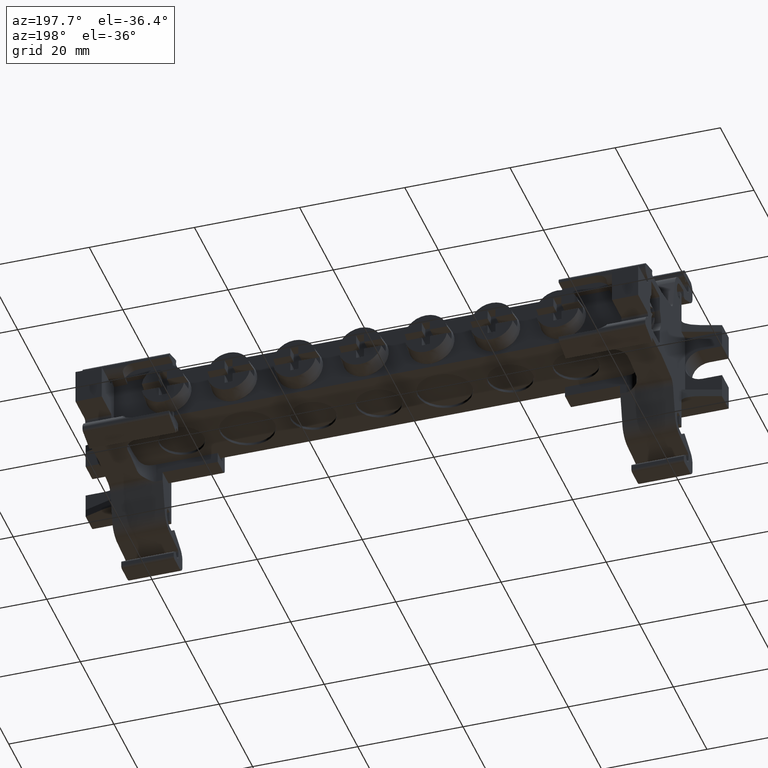
[diagram: clean part render]
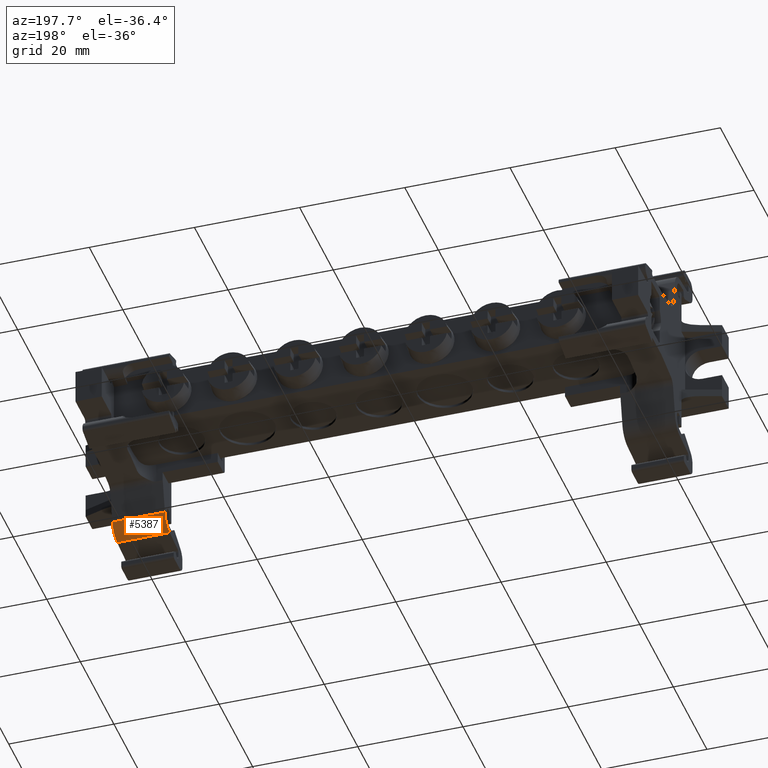
[diagram: same view with one face highlighted and labeled with its STEP entity id]
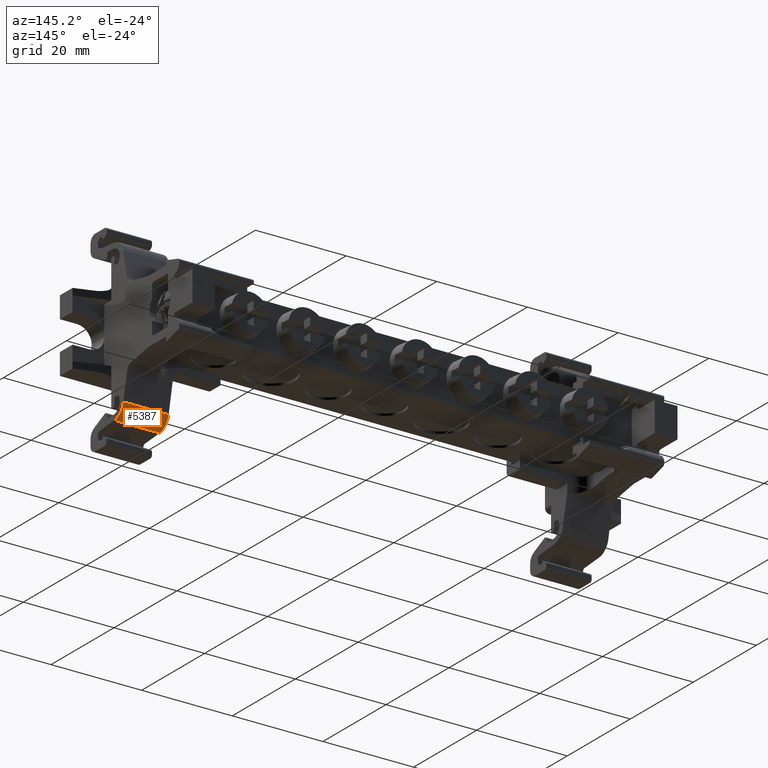
[diagram: same view with one face highlighted and labeled with its STEP entity id]
A machine part, auxiliary view. The second image highlights one B-rep face of the part: STEP entity #5387.
A second angle (auxiliary view) of the same face is appended — the face is thin or edge-on in the first view.
In plain terms, the highlighted cylindrical surface (edge-blend (fillet) strip) has radius 3.2 mm, axis along (1, -0, 0).
Its self-contained STEP definition (entity closure, byte-faithful):
#809 = CIRCLE ( 'NONE', #835, 3.199999923352063300 ) ;
#835 = AXIS2_PLACEMENT_3D ( 'NONE', #6535, #6533, #6554 ) ;
#1422 = ORIENTED_EDGE ( 'NONE', *, *, #18572, .T. ) ;
#1432 = ORIENTED_EDGE ( 'NONE', *, *, #9645, .F. ) ;
#1437 = ORIENTED_EDGE ( 'NONE', *, *, #2109, .T. ) ;
#1441 = ORIENTED_EDGE ( 'NONE', *, *, #18581, .T. ) ;
#2109 = EDGE_CURVE ( 'NONE', #2955, #2957, #809, .T. ) ;
#2955 = VERTEX_POINT ( 'NONE', #8317 ) ;
#2957 = VERTEX_POINT ( 'NONE', #8308 ) ;
#3103 = VERTEX_POINT ( 'NONE', #8453 ) ;
#3133 = VERTEX_POINT ( 'NONE', #8520 ) ;
#5223 = EDGE_LOOP ( 'NONE', ( #1437, #1441, #1422, #1432 ) ) ;
#5387 = ADVANCED_FACE ( 'NONE', ( #9932 ), #9907, .T. ) ;
#6533 = DIRECTION ( 'NONE',  ( 1.000000000000000000, -7.897574987183420400E-015, 3.511194205269045200E-015 ) ) ;
#6535 = CARTESIAN_POINT ( 'NONE',  ( 35.04730230417592200, 44.64504681959529400, 23.63694516486114900 ) ) ;
#6554 = DIRECTION ( 'NONE',  ( 8.673617587638689600E-015, 1.000000000000000000, 0.0000000000000000000 ) ) ;
#8308 = CARTESIAN_POINT ( 'NONE',  ( 35.04730230417595000, 47.79345559758320400, 23.06465006952844400 ) ) ;
#8317 = CARTESIAN_POINT ( 'NONE',  ( 35.04730230417590800, 44.92394467208271900, 20.44912216203768900 ) ) ;
#8453 = CARTESIAN_POINT ( 'NONE',  ( 45.04730230417597900, 44.92394467208267600, 20.44912216203772800 ) ) ;
#8520 = CARTESIAN_POINT ( 'NONE',  ( 45.04730230417603600, 47.79345559758319000, 23.06465006952881700 ) ) ;
#9645 = EDGE_CURVE ( 'NONE', #2955, #3103, #11787, .T. ) ;
#9907 = CYLINDRICAL_SURFACE ( 'NONE', #17561, 3.199999923352063300 ) ;
#9916 = DIRECTION ( 'NONE',  ( 7.589415389183852600E-015, 1.000000000000000000, 0.0000000000000000000 ) ) ;
#9932 = FACE_OUTER_BOUND ( 'NONE', #5223, .T. ) ;
#9939 = DIRECTION ( 'NONE',  ( 1.000000000000000000, -7.897574987183420400E-015, 3.511194205269045200E-015 ) ) ;
#9947 = CARTESIAN_POINT ( 'NONE',  ( 17.61299581122692000, 44.64504681959543600, 23.63694516486108600 ) ) ;
#10343 = CIRCLE ( 'NONE', #10363, 3.199999923352063300 ) ;
#10363 = AXIS2_PLACEMENT_3D ( 'NONE', #14687, #14702, #14708 ) ;
#10366 = VECTOR ( 'NONE', #14741, 1000.000000000000000 ) ;
#11787 = LINE ( 'NONE', #11789, #18018 ) ;
#11788 = DIRECTION ( 'NONE',  ( 1.000000000000000000, -3.648464032826934000E-016, 4.170221321331840900E-015 ) ) ;
#11789 = CARTESIAN_POINT ( 'NONE',  ( 17.61299581122688500, 44.92394467542261100, 20.44912216232982200 ) ) ;
#14687 = CARTESIAN_POINT ( 'NONE',  ( 45.04730230417600700, 44.64504681959521500, 23.63694516486118100 ) ) ;
#14702 = DIRECTION ( 'NONE',  ( -1.000000000000000000, 7.897574987183420400E-015, -3.511194205269045200E-015 ) ) ;
#14708 = DIRECTION ( 'NONE',  ( 8.673617587638689600E-015, 1.000000000000000000, 0.0000000000000000000 ) ) ;
#14719 = LINE ( 'NONE', #14734, #10366 ) ;
#14734 = CARTESIAN_POINT ( 'NONE',  ( 17.61299581122694800, 47.79345559758297700, 23.06465006952633300 ) ) ;
#14741 = DIRECTION ( 'NONE',  ( 1.000000000000000000, -7.897574987183420400E-015, 3.511194205269045200E-015 ) ) ;
#17561 = AXIS2_PLACEMENT_3D ( 'NONE', #9947, #9939, #9916 ) ;
#18018 = VECTOR ( 'NONE', #11788, 1000.000000000000000 ) ;
#18572 = EDGE_CURVE ( 'NONE', #3133, #3103, #10343, .T. ) ;
#18581 = EDGE_CURVE ( 'NONE', #2957, #3133, #14719, .T. ) ;